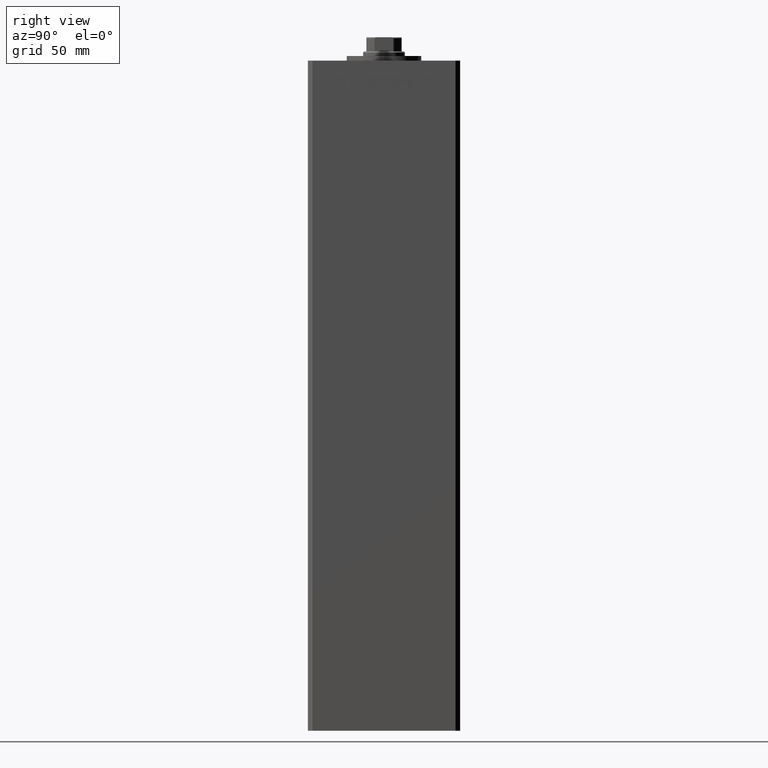
[diagram: clean part render]
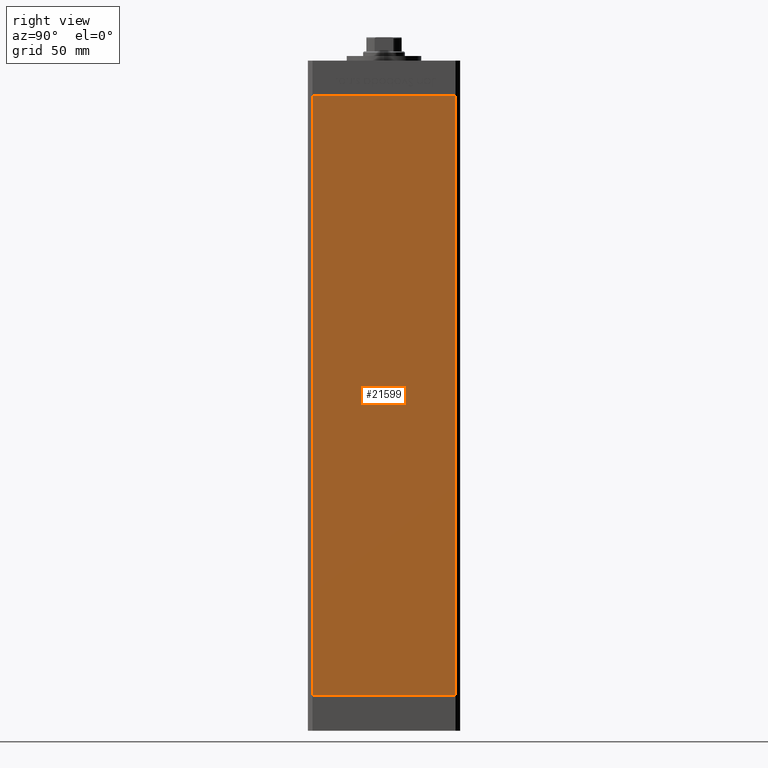
[diagram: same view with one face highlighted and labeled with its STEP entity id]
A machine part, right view. The second image highlights one B-rep face of the part: STEP entity #21599.
In plain terms, the highlighted planar face has unit normal (1, -0, 0).
Its self-contained STEP definition (entity closure, byte-faithful):
#3500 = LINE ( 'NONE', #23534, #27912 ) ;
#4096 = LINE ( 'NONE', #39417, #16015 ) ;
#4726 = CARTESIAN_POINT ( 'NONE',  ( 37.50000000000000711, 30.50000000000000000, 256.0000000000000000 ) ) ;
#7253 = CARTESIAN_POINT ( 'NONE',  ( 37.50000000000000711, 30.50000000000000000, 0.000000000000000000 ) ) ;
#7797 = LINE ( 'NONE', #24115, #48099 ) ;
#8970 = DIRECTION ( 'NONE',  ( 2.275047181608927644E-16, 1.000000000000000000, 0.000000000000000000 ) ) ;
#13175 = DIRECTION ( 'NONE',  ( 1.000000000000000000, -2.275047181608927644E-16, 0.000000000000000000 ) ) ;
#13703 = PLANE ( 'NONE',  #41339 ) ;
#15314 = LINE ( 'NONE', #31389, #16143 ) ;
#15686 = DIRECTION ( 'NONE',  ( -2.275047181608927644E-16, -1.000000000000000000, 0.000000000000000000 ) ) ;
#16015 = VECTOR ( 'NONE', #43140, 1000.000000000000000 ) ;
#16143 = VECTOR ( 'NONE', #43516, 1000.000000000000000 ) ;
#21599 = ADVANCED_FACE ( 'NONE', ( #29768 ), #13703, .T. ) ;
#21687 = EDGE_LOOP ( 'NONE', ( #44096, #25348, #40685, #34269 ) ) ;
#23534 = CARTESIAN_POINT ( 'NONE',  ( 37.50000000000000711, 30.50000000000000000, 256.0000000000000000 ) ) ;
#24115 = CARTESIAN_POINT ( 'NONE',  ( 37.50000000000000711, 30.50000000000000000, 0.000000000000000000 ) ) ;
#25348 = ORIENTED_EDGE ( 'NONE', *, *, #49217, .F. ) ;
#27912 = VECTOR ( 'NONE', #43849, 1000.000000000000000 ) ;
#29768 = FACE_OUTER_BOUND ( 'NONE', #21687, .T. ) ;
#31389 = CARTESIAN_POINT ( 'NONE',  ( 37.50000000000000711, 30.50000000000000000, 256.0000000000000000 ) ) ;
#32280 = VERTEX_POINT ( 'NONE', #42490 ) ;
#34269 = ORIENTED_EDGE ( 'NONE', *, *, #51100, .T. ) ;
#39417 = CARTESIAN_POINT ( 'NONE',  ( 37.49999999999999289, -30.50000000000000000, 256.0000000000000000 ) ) ;
#40685 = ORIENTED_EDGE ( 'NONE', *, *, #50472, .T. ) ;
#41021 = CARTESIAN_POINT ( 'NONE',  ( 37.50000000000000711, 30.50000000000000000, 256.0000000000000000 ) ) ;
#41339 = AXIS2_PLACEMENT_3D ( 'NONE', #4726, #13175, #8970 ) ;
#42490 = CARTESIAN_POINT ( 'NONE',  ( 37.49999999999999289, -30.50000000000000000, 0.000000000000000000 ) ) ;
#43140 = DIRECTION ( 'NONE',  ( -0.000000000000000000, -0.000000000000000000, -1.000000000000000000 ) ) ;
#43516 = DIRECTION ( 'NONE',  ( -2.275047181608927644E-16, -1.000000000000000000, 0.000000000000000000 ) ) ;
#43845 = CARTESIAN_POINT ( 'NONE',  ( 37.49999999999999289, -30.50000000000000000, 256.0000000000000000 ) ) ;
#43849 = DIRECTION ( 'NONE',  ( -0.000000000000000000, -0.000000000000000000, -1.000000000000000000 ) ) ;
#44096 = ORIENTED_EDGE ( 'NONE', *, *, #48805, .F. ) ;
#46081 = VERTEX_POINT ( 'NONE', #7253 ) ;
#46505 = VERTEX_POINT ( 'NONE', #43845 ) ;
#48099 = VECTOR ( 'NONE', #15686, 1000.000000000000000 ) ;
#48805 = EDGE_CURVE ( 'NONE', #46081, #32280, #7797, .T. ) ;
#49217 = EDGE_CURVE ( 'NONE', #51042, #46081, #3500, .T. ) ;
#50472 = EDGE_CURVE ( 'NONE', #51042, #46505, #15314, .T. ) ;
#51042 = VERTEX_POINT ( 'NONE', #41021 ) ;
#51100 = EDGE_CURVE ( 'NONE', #46505, #32280, #4096, .T. ) ;